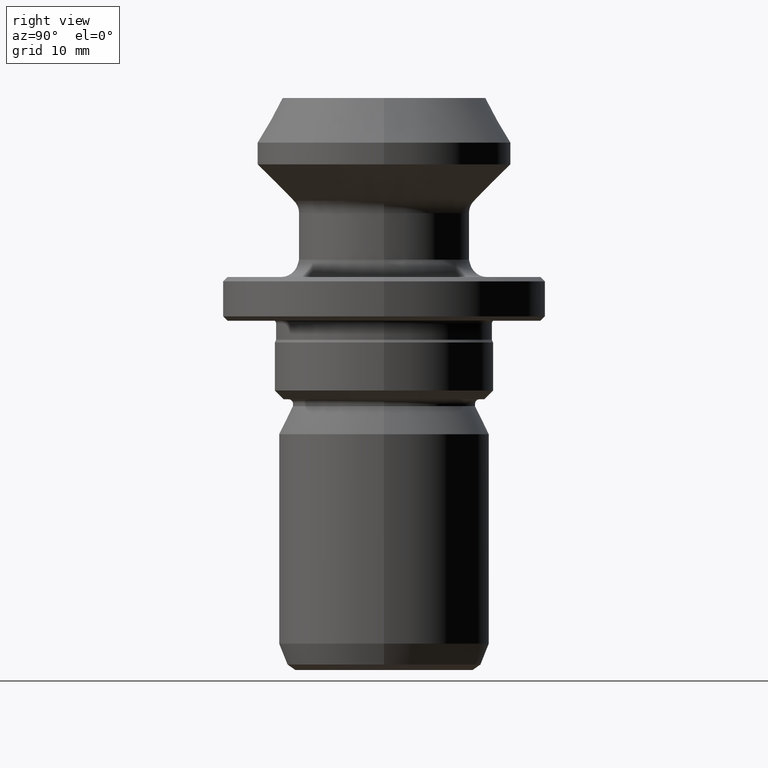
[diagram: clean part render]
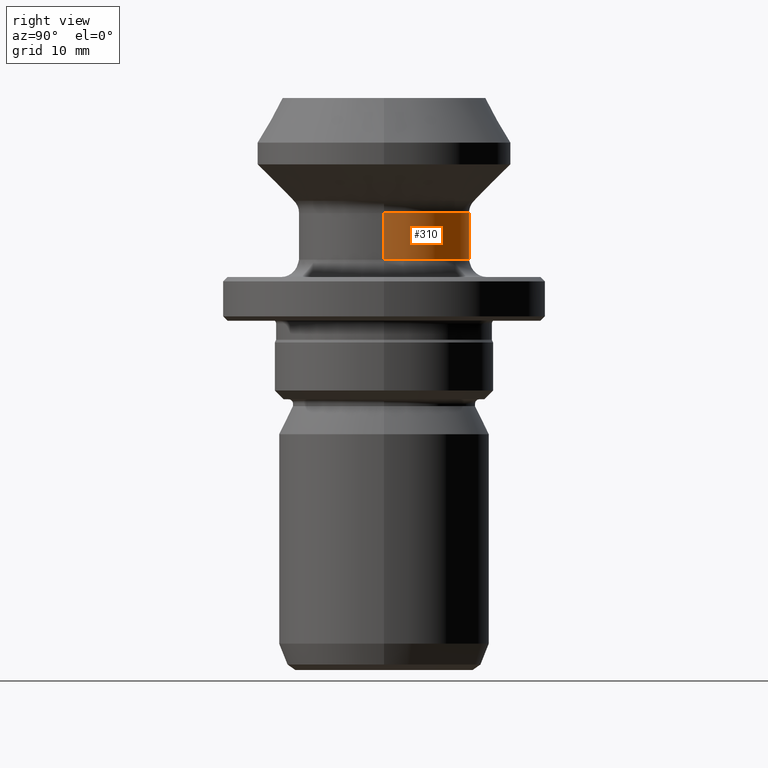
[diagram: same view with one face highlighted and labeled with its STEP entity id]
A machine part, right view. The second image highlights one B-rep face of the part: STEP entity #310.
In plain terms, the highlighted cylindrical surface (partial cylindrical patch) has radius 9.8 mm, axis along (-0, -0, 1).
Its self-contained STEP definition (entity closure, byte-faithful):
#41 = VERTEX_POINT ( 'NONE', #851 ) ;
#112 = CARTESIAN_POINT ( 'NONE',  ( 9.800000000000000700, 0.0000000000000000000, -18.50000000000000400 ) ) ;
#114 = CARTESIAN_POINT ( 'NONE',  ( -9.800000000000000700, 1.322618543079141900E-015, -18.50000000000000400 ) ) ;
#178 = FACE_OUTER_BOUND ( 'NONE', #1230, .T. ) ;
#204 = CIRCLE ( 'NONE', #917, 9.800000000000000700 ) ;
#209 = AXIS2_PLACEMENT_3D ( 'NONE', #1006, #418, #1108 ) ;
#253 = DIRECTION ( 'NONE',  ( 1.000000000000000000, 0.0000000000000000000, 0.0000000000000000000 ) ) ;
#276 = ORIENTED_EDGE ( 'NONE', *, *, #820, .F. ) ;
#310 = ADVANCED_FACE ( 'NONE', ( #178 ), #902, .T. ) ;
#312 = VECTOR ( 'NONE', #436, 1000.000000000000000 ) ;
#345 = VECTOR ( 'NONE', #932, 1000.000000000000000 ) ;
#351 = CARTESIAN_POINT ( 'NONE',  ( -9.799999999999998900, 1.200153863164406100E-015, 0.0000000000000000000 ) ) ;
#383 = ORIENTED_EDGE ( 'NONE', *, *, #781, .T. ) ;
#418 = DIRECTION ( 'NONE',  ( -0.0000000000000000000, -0.0000000000000000000, 1.000000000000000000 ) ) ;
#435 = DIRECTION ( 'NONE',  ( -0.0000000000000000000, -0.0000000000000000000, 1.000000000000000000 ) ) ;
#436 = DIRECTION ( 'NONE',  ( -0.0000000000000000000, -0.0000000000000000000, 1.000000000000000000 ) ) ;
#652 = AXIS2_PLACEMENT_3D ( 'NONE', #990, #1134, #253 ) ;
#758 = EDGE_CURVE ( 'NONE', #970, #41, #855, .T. ) ;
#769 = CARTESIAN_POINT ( 'NONE',  ( -9.799999999999998900, 1.200153863164406100E-015, -13.17842712474620400 ) ) ;
#781 = EDGE_CURVE ( 'NONE', #1116, #996, #1101, .T. ) ;
#820 = EDGE_CURVE ( 'NONE', #41, #996, #1001, .T. ) ;
#851 = CARTESIAN_POINT ( 'NONE',  ( 9.799999999999998900, 0.0000000000000000000, -13.17842712474620400 ) ) ;
#855 = LINE ( 'NONE', #1138, #345 ) ;
#902 = CYLINDRICAL_SURFACE ( 'NONE', #652, 9.799999999999998900 ) ;
#917 = AXIS2_PLACEMENT_3D ( 'NONE', #1031, #435, #1137 ) ;
#932 = DIRECTION ( 'NONE',  ( -0.0000000000000000000, -0.0000000000000000000, 1.000000000000000000 ) ) ;
#970 = VERTEX_POINT ( 'NONE', #112 ) ;
#990 = CARTESIAN_POINT ( 'NONE',  ( 0.0000000000000000000, 0.0000000000000000000, 0.0000000000000000000 ) ) ;
#996 = VERTEX_POINT ( 'NONE', #769 ) ;
#1001 = CIRCLE ( 'NONE', #209, 9.799999999999998900 ) ;
#1006 = CARTESIAN_POINT ( 'NONE',  ( 0.0000000000000000000, 0.0000000000000000000, -13.17842712474620400 ) ) ;
#1031 = CARTESIAN_POINT ( 'NONE',  ( 0.0000000000000000000, 0.0000000000000000000, -18.50000000000000400 ) ) ;
#1101 = LINE ( 'NONE', #351, #312 ) ;
#1103 = ORIENTED_EDGE ( 'NONE', *, *, #758, .F. ) ;
#1108 = DIRECTION ( 'NONE',  ( 1.000000000000000000, 0.0000000000000000000, 0.0000000000000000000 ) ) ;
#1116 = VERTEX_POINT ( 'NONE', #114 ) ;
#1134 = DIRECTION ( 'NONE',  ( -0.0000000000000000000, -0.0000000000000000000, 1.000000000000000000 ) ) ;
#1137 = DIRECTION ( 'NONE',  ( 1.000000000000000000, 0.0000000000000000000, 0.0000000000000000000 ) ) ;
#1138 = CARTESIAN_POINT ( 'NONE',  ( 9.799999999999998900, 0.0000000000000000000, 0.0000000000000000000 ) ) ;
#1188 = EDGE_CURVE ( 'NONE', #970, #1116, #204, .T. ) ;
#1230 = EDGE_LOOP ( 'NONE', ( #1237, #383, #276, #1103 ) ) ;
#1237 = ORIENTED_EDGE ( 'NONE', *, *, #1188, .T. ) ;